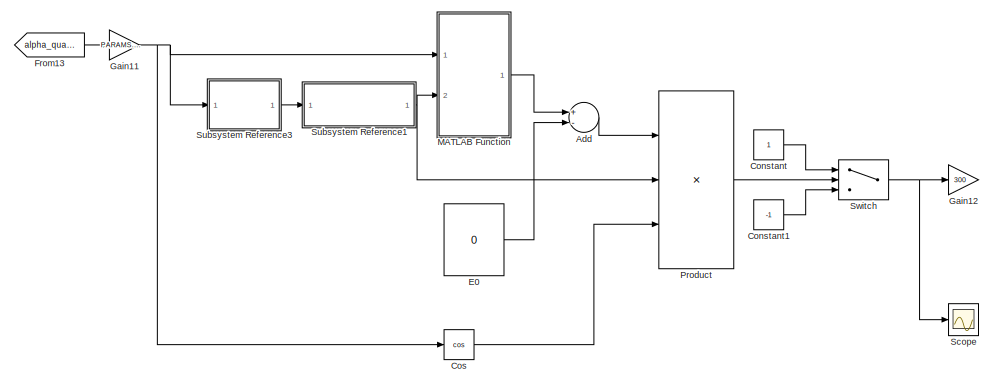
[diagram: root canvas - part 1/5, top left region]
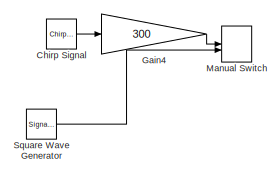
[diagram: root canvas - part 2/5, top center region]
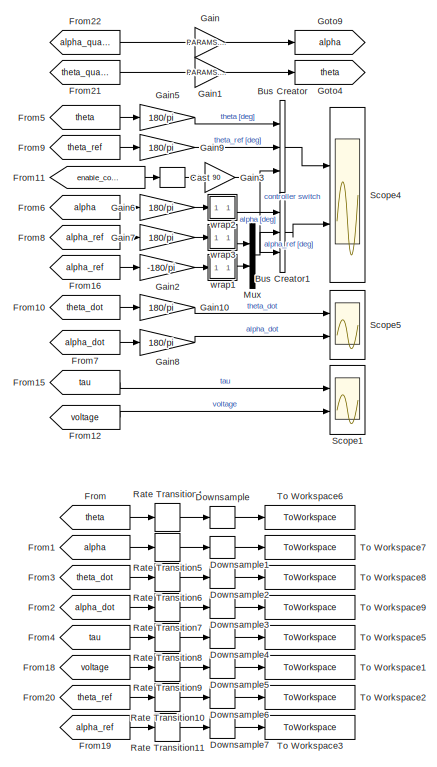
[diagram: root canvas - part 3/5, middle right region]
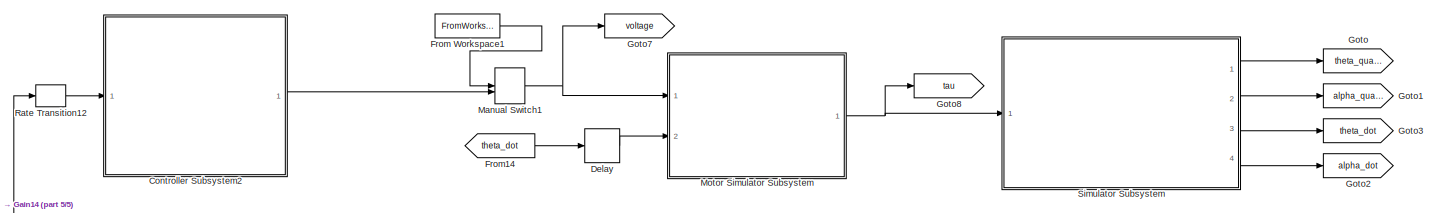
[diagram: root canvas - part 4/5, central region]
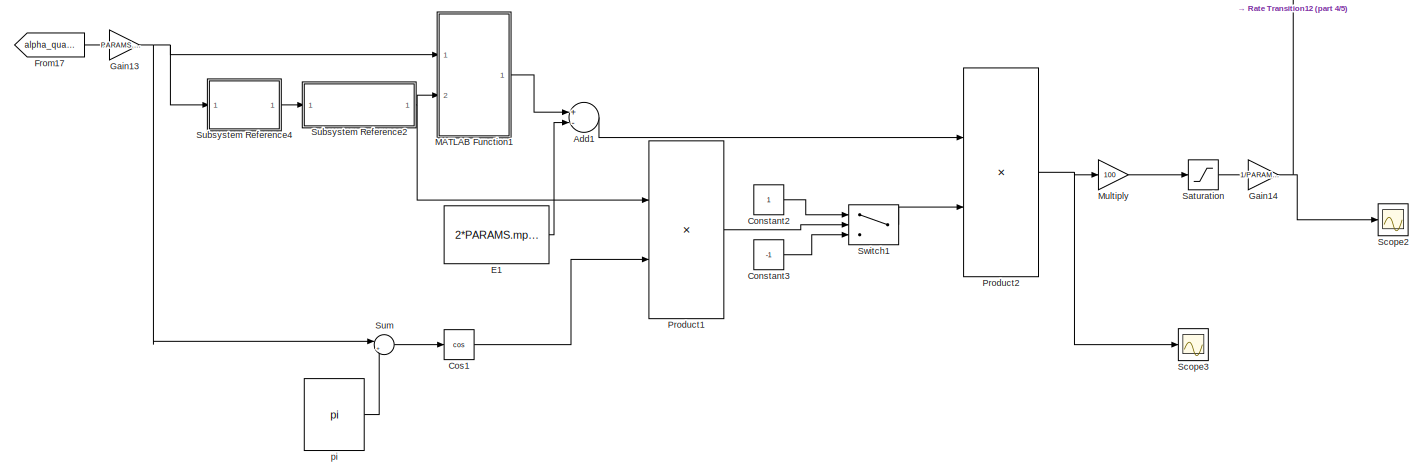
[diagram: root canvas - part 5/5, bottom center region]
MODEL slx_0ac71ec4b9f1
KIND model
CONFIG AbsTol = auto
CONFIG EnableMultiTasking = off
CONFIG FixedStep = dt
CONFIG MaxStep = auto
CONFIG MinStep = auto
CONFIG RelTol = 1e-3
CONFIG SampleTimeConstraint = Unconstrained
CONFIG Solver = ode1
CONFIG SolverName = ode1
CONFIG StartTime = 0.0
CONFIG StopTime = 25
BLOCK [Sum] Add
  InputSameDT = off
  Inputs = +-
  OutDataTypeStr = Inherit: Inherit via internal rule
  Ports = [2, 1]
  SaturateOnIntegerOverflow = off
BLOCK [Sum] Add1
  InputSameDT = off
  Inputs = +-
  OutDataTypeStr = Inherit: Inherit via internal rule
  Ports = [2, 1]
  SaturateOnIntegerOverflow = off
BLOCK [BusCreator] Bus Creator
  DisplayOption = bar
  InheritFromInputs = on
  Inputs = 3
  Ports = [3, 1]
BLOCK [BusCreator] Bus Creator1
  DisplayOption = bar
  InheritFromInputs = on
  Inputs = 3
  Ports = [3, 1]
BLOCK [DataTypeConversion] Cast
  OutDataTypeStr = double
  RndMeth = Floor
  SaturateOnIntegerOverflow = off
BLOCK [Reference] Chirp Signal  REF=simulink/Sources/Chirp Signal
  Ports = [0, 1]
  SourceBlock = simulink/Sources/Chirp Signal
  SourceProductBaseCode = SL
  SourceProductName = Simulink
  SourceType = chirp
BLOCK [Constant] Constant
BLOCK [Constant] Constant1
  Value = -1
BLOCK [Constant] Constant2
BLOCK [Constant] Constant3
  Value = -1
BLOCK [SubSystem] Controller Subsystem2
  Ports = [1, 1]
  ReferencedSubsystem = s0506_th_ddot_pid
  RequestExecContextInheritance = off
BLOCK [Trigonometry] Cos
  Operator = cos
  Ports = [1, 1]
BLOCK [Trigonometry] Cos1
  Operator = cos
  Ports = [1, 1]
BLOCK [Delay] Delay
  DelayLength = 1
  InitialCondition = PARAMS.th_dot_0
  InputPortMap = u0
  Ports = [1, 1]
BLOCK [DownSample] Downsample
  InputProcessing = Elements as channels (sample based)
  N = ceil((2e-3)/dt)
  RateOptions = Allow multirate processing
BLOCK [DownSample] Downsample1
  InputProcessing = Elements as channels (sample based)
  N = ceil((2e-3)/dt)
  RateOptions = Allow multirate processing
BLOCK [DownSample] Downsample2
  InputProcessing = Elements as channels (sample based)
  N = ceil((2e-3)/dt)
  RateOptions = Allow multirate processing
BLOCK [DownSample] Downsample3
  InputProcessing = Elements as channels (sample based)
  N = ceil((2e-3)/dt)
  RateOptions = Allow multirate processing
BLOCK [DownSample] Downsample4
  InputProcessing = Elements as channels (sample based)
  N = ceil((2e-3)/dt)
  RateOptions = Allow multirate processing
BLOCK [DownSample] Downsample5
  InputProcessing = Elements as channels (sample based)
  N = ceil((2e-3)/dt)
  RateOptions = Allow multirate processing
BLOCK [DownSample] Downsample6
  InputProcessing = Elements as channels (sample based)
  N = ceil((2e-3)/dt)
  RateOptions = Allow multirate processing
BLOCK [DownSample] Downsample7
  InputProcessing = Elements as channels (sample based)
  N = ceil((2e-3)/dt)
  RateOptions = Allow multirate processing
BLOCK [Constant] E0
  Value = 0
BLOCK [Constant] E1
  Value = 2*PARAMS.mp*PARAMS.g*PARAMS.l2
BLOCK [From] From
  GotoTag = theta
BLOCK [FromWorkspace] From Workspace1
  Commented = on
  SampleTime = 0
  VariableName = simin.voltage
  ZeroCross = on
BLOCK [From] From1
  GotoTag = alpha
BLOCK [From] From10
  GotoTag = theta_dot
  TagVisibility = global
BLOCK [From] From11
  GotoTag = enable_controller
BLOCK [From] From12
  GotoTag = voltage
BLOCK [From] From13
  GotoTag = alpha_quant
BLOCK [From] From14
  GotoTag = theta_dot
  TagVisibility = global
BLOCK [From] From15
  GotoTag = tau
BLOCK [From] From16
  GotoTag = alpha_ref
BLOCK [From] From17
  GotoTag = alpha_quant
BLOCK [From] From18
  GotoTag = voltage
BLOCK [From] From19
  GotoTag = alpha_ref
BLOCK [From] From2
  GotoTag = alpha_dot
  TagVisibility = global
BLOCK [From] From20
  GotoTag = theta_ref
BLOCK [From] From21
  GotoTag = theta_quant
BLOCK [From] From22
  GotoTag = alpha_quant
BLOCK [From] From3
  GotoTag = theta_dot
  TagVisibility = global
BLOCK [From] From4
  GotoTag = tau
BLOCK [From] From5
  GotoTag = theta
BLOCK [From] From6
  GotoTag = alpha
BLOCK [From] From7
  GotoTag = alpha_dot
  TagVisibility = global
BLOCK [From] From8
  GotoTag = alpha_ref
BLOCK [From] From9
  GotoTag = theta_ref
BLOCK [Gain] Gain
  Gain = PARAMS.angle_quantization
  OutDataTypeStr = Inherit: Inherit via internal rule
  ParamDataTypeStr = Inherit: Inherit via internal rule
  SaturateOnIntegerOverflow = off
BLOCK [Gain] Gain1
  Gain = PARAMS.angle_quantization
  OutDataTypeStr = Inherit: Inherit via internal rule
  ParamDataTypeStr = Inherit: Inherit via internal rule
  SaturateOnIntegerOverflow = off
BLOCK [Gain] Gain10
  Gain = 180/pi
  OutDataTypeStr = Inherit: Inherit via internal rule
  ParamDataTypeStr = Inherit: Inherit via internal rule
  SaturateOnIntegerOverflow = off
BLOCK [Gain] Gain11
  Gain = PARAMS.angle_quantization
  OutDataTypeStr = Inherit: Inherit via internal rule
  ParamDataTypeStr = Inherit: Inherit via internal rule
  SaturateOnIntegerOverflow = off
BLOCK [Gain] Gain12
  Gain = 300
  OutDataTypeStr = Inherit: Inherit via internal rule
  ParamDataTypeStr = Inherit: Inherit via internal rule
  SaturateOnIntegerOverflow = off
BLOCK [Gain] Gain13
  Gain = PARAMS.angle_quantization
  OutDataTypeStr = Inherit: Inherit via internal rule
  ParamDataTypeStr = Inherit: Inherit via internal rule
  SaturateOnIntegerOverflow = off
BLOCK [Gain] Gain14
  Gain = 1/PARAMS.Lr
  OutDataTypeStr = Inherit: Inherit via internal rule
  ParamDataTypeStr = Inherit: Inherit via internal rule
  SaturateOnIntegerOverflow = off
BLOCK [Gain] Gain2
  Gain = -180/pi
  OutDataTypeStr = Inherit: Inherit via internal rule
  ParamDataTypeStr = Inherit: Inherit via internal rule
  SaturateOnIntegerOverflow = off
BLOCK [Gain] Gain3
  Gain = 90
  OutDataTypeStr = Inherit: Inherit via internal rule
  ParamDataTypeStr = Inherit: Inherit via internal rule
  SaturateOnIntegerOverflow = off
BLOCK [Gain] Gain4
  Gain = 300
  OutDataTypeStr = Inherit: Inherit via internal rule
  ParamDataTypeStr = Inherit: Inherit via internal rule
  SaturateOnIntegerOverflow = off
BLOCK [Gain] Gain5
  Gain = 180/pi
  OutDataTypeStr = Inherit: Inherit via internal rule
  ParamDataTypeStr = Inherit: Inherit via internal rule
  SaturateOnIntegerOverflow = off
BLOCK [Gain] Gain6
  Gain = 180/pi
  OutDataTypeStr = Inherit: Inherit via internal rule
  ParamDataTypeStr = Inherit: Inherit via internal rule
  SaturateOnIntegerOverflow = off
BLOCK [Gain] Gain7
  Gain = 180/pi
  OutDataTypeStr = Inherit: Inherit via internal rule
  ParamDataTypeStr = Inherit: Inherit via internal rule
  SaturateOnIntegerOverflow = off
BLOCK [Gain] Gain8
  Gain = 180/pi
  OutDataTypeStr = Inherit: Inherit via internal rule
  ParamDataTypeStr = Inherit: Inherit via internal rule
  SaturateOnIntegerOverflow = off
BLOCK [Gain] Gain9
  Gain = 180/pi
  OutDataTypeStr = Inherit: Inherit via internal rule
  ParamDataTypeStr = Inherit: Inherit via internal rule
  SaturateOnIntegerOverflow = off
BLOCK [Goto] Goto
  GotoTag = theta_quant
BLOCK [Goto] Goto1
  GotoTag = alpha_quant
BLOCK [Goto] Goto2
  GotoTag = alpha_dot
  TagVisibility = global
BLOCK [Goto] Goto3
  GotoTag = theta_dot
  TagVisibility = global
BLOCK [Goto] Goto4
  GotoTag = theta
BLOCK [Goto] Goto7
  GotoTag = voltage
BLOCK [Goto] Goto8
  GotoTag = tau
BLOCK [Goto] Goto9
  GotoTag = alpha
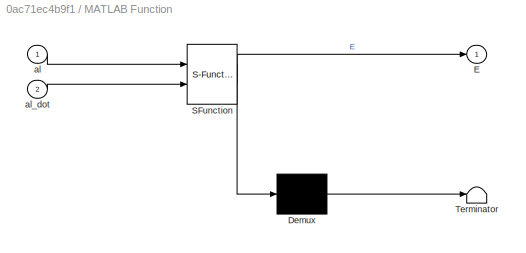
BLOCK [SubSystem] MATLAB Function
  ErrorFcn = Stateflow.Translate.translate
  PermitHierarchicalResolution = ExplicitOnly
  Ports = [2, 1]
  RequestExecContextInheritance = off
  SFBlockType = MATLAB Function
  TreatAsAtomicUnit = on
BLOCK [Demux] MATLAB Function/ Demux 
  Outputs = 1
  Ports = [1, 1]
BLOCK [S-Function] MATLAB Function/ SFunction 
  EnableBusSupport = on
  FunctionName = sf_sfun
  Parameters = PARAMS
  PortCounts = [2 2]
  Ports = [2, 2]
  SFcnIsStateOwnerBlock = off
  SFunctionDeploymentMode = off
  Tag = Stateflow S-Function 9
BLOCK [Terminator] MATLAB Function/ Terminator 
BLOCK [Outport] MATLAB Function/E
  IconDisplay = Port number
BLOCK [Inport] MATLAB Function/al
  IconDisplay = Port number
BLOCK [Inport] MATLAB Function/al_dot
  IconDisplay = Port number
  Port = 2
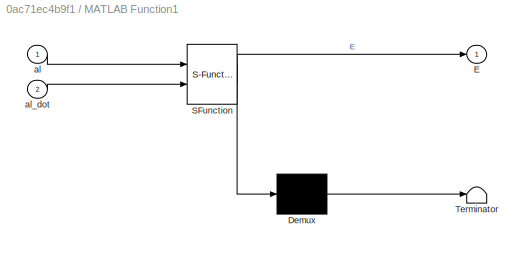
BLOCK [SubSystem] MATLAB Function1
  ErrorFcn = Stateflow.Translate.translate
  PermitHierarchicalResolution = ExplicitOnly
  Ports = [2, 1]
  RequestExecContextInheritance = off
  SFBlockType = MATLAB Function
  TreatAsAtomicUnit = on
BLOCK [Demux] MATLAB Function1/ Demux 
  Outputs = 1
  Ports = [1, 1]
BLOCK [S-Function] MATLAB Function1/ SFunction 
  EnableBusSupport = on
  FunctionName = sf_sfun
  Parameters = PARAMS
  PortCounts = [2 2]
  Ports = [2, 2]
  SFcnIsStateOwnerBlock = off
  SFunctionDeploymentMode = off
  Tag = Stateflow S-Function 13
BLOCK [Terminator] MATLAB Function1/ Terminator 
BLOCK [Outport] MATLAB Function1/E
  IconDisplay = Port number
BLOCK [Inport] MATLAB Function1/al
  IconDisplay = Port number
BLOCK [Inport] MATLAB Function1/al_dot
  IconDisplay = Port number
  Port = 2
BLOCK [ManualSwitch] Manual Switch
  CurrentSetting = 0
BLOCK [ManualSwitch] Manual Switch1
  CurrentSetting = 0
BLOCK [SubSystem] Motor Simulator Subsystem
  Ports = [2, 1]
  ReferencedSubsystem = s0303_motor_simulator
  RequestExecContextInheritance = off
  i_0 = 0
  omega_0 = PARAMS.th_dot_0
BLOCK [Gain] Multiply
  Gain = 100
  OutDataTypeStr = Inherit: Inherit via internal rule
  ParamDataTypeStr = Inherit: Inherit via internal rule
  SaturateOnIntegerOverflow = off
BLOCK [Mux] Mux
  DisplayOption = bar
  Inputs = 2
  Ports = [2, 1]
BLOCK [Product] Product
  InputSameDT = off
  Inputs = 3
  OutDataTypeStr = Inherit: Inherit via internal rule
  Ports = [3, 1]
  RndMeth = Floor
  SaturateOnIntegerOverflow = off
BLOCK [Product] Product1
  InputSameDT = off
  OutDataTypeStr = Inherit: Inherit via internal rule
  Ports = [2, 1]
  RndMeth = Floor
  SaturateOnIntegerOverflow = off
BLOCK [Product] Product2
  InputSameDT = off
  OutDataTypeStr = Inherit: Inherit via internal rule
  Ports = [2, 1]
  RndMeth = Floor
  SaturateOnIntegerOverflow = off
BLOCK [RateTransition] Rate Transition10
  OutPortSampleTime = dt
BLOCK [RateTransition] Rate Transition11
  OutPortSampleTime = dt
BLOCK [RateTransition] Rate Transition12
  OutPortSampleTime = dt_control
BLOCK [RateTransition] Rate Transition4
  OutPortSampleTime = dt
BLOCK [RateTransition] Rate Transition5
  OutPortSampleTime = dt
BLOCK [RateTransition] Rate Transition6
  OutPortSampleTime = dt
BLOCK [RateTransition] Rate Transition7
  OutPortSampleTime = dt
BLOCK [RateTransition] Rate Transition8
  OutPortSampleTime = dt
BLOCK [RateTransition] Rate Transition9
  OutPortSampleTime = dt
BLOCK [Saturate] Saturation
  InputPortMap = u0
  LowerLimit = -200
  Ports = [1, 1]
  UpperLimit = 200
BLOCK [Scope] Scope
  Floating = off
  NumInputPorts = 1
  Ports = [1]
  ScopeSpecificationString = Simulink.scopes.TimeScopeBlockCfg('CurrentConfiguration', extmgr.ConfigurationSet(extmgr.Configuration('Core','General UI',true),extmgr.Configuration('Core','Source UI',true),extmgr.Configuration('Sources','WiredSimulink',true,'DataLoggingVariableName','ScopeData2'),extmgr.Configuration('Visuals','Time Domain',true,'SerializedDisplays',{struct('MinYLimReal','-1.25','MaxYLimReal','1.25','YLabelReal...<+1392ch>
BLOCK [Scope] Scope1
  Floating = off
  NumInputPorts = 2
  Ports = [2]
  ScopeSpecificationString = Simulink.scopes.TimeScopeBlockCfg('CurrentConfiguration', extmgr.ConfigurationSet(extmgr.Configuration('Core','General UI',true),extmgr.Configuration('Core','Source UI',true),extmgr.Configuration('Sources','WiredSimulink',true),extmgr.Configuration('Visuals','Time Domain',true,'SerializedDisplays',{struct('MinYLimReal','-0.0275','MaxYLimReal','0.0275','YLabelReal','','MinYLimMag','0.00000','MaxYLi...<+1988ch>
BLOCK [Scope] Scope2
  Floating = off
  NumInputPorts = 1
  Ports = [1]
  ScopeSpecificationString = Simulink.scopes.TimeScopeBlockCfg('CurrentConfiguration', extmgr.ConfigurationSet(extmgr.Configuration('Core','General UI',true),extmgr.Configuration('Core','Source UI',true),extmgr.Configuration('Sources','WiredSimulink',true,'DataLoggingVariableName','ScopeData3'),extmgr.Configuration('Visuals','Time Domain',true,'SerializedDisplays',{struct('MinYLimReal','-218.0723','MaxYLimReal','246.45248','Y...<+1422ch>
BLOCK [Scope] Scope3
  Floating = off
  NumInputPorts = 1
  Ports = [1]
  ScopeSpecificationString = Simulink.scopes.TimeScopeBlockCfg('CurrentConfiguration', extmgr.ConfigurationSet(extmgr.Configuration('Core','General UI',true),extmgr.Configuration('Core','Source UI',true),extmgr.Configuration('Sources','WiredSimulink',true,'DataLoggingVariableName','ScopeData4'),extmgr.Configuration('Visuals','Time Domain',true,'SerializedDisplays',{struct('MinYLimReal','-0.03046','MaxYLimReal','0.03046','YLab...<+1393ch>
BLOCK [Scope] Scope4
  Floating = off
  NumInputPorts = 2
  Ports = [2]
  ScopeSpecificationString = Simulink.scopes.TimeScopeBlockCfg('CurrentConfiguration', extmgr.ConfigurationSet(extmgr.Configuration('Core','General UI',true),extmgr.Configuration('Core','Source UI',true),extmgr.Configuration('Sources','WiredSimulink',true,'DataLoggingVariableName','ScopeData3'),extmgr.Configuration('Visuals','Time Domain',true,'SerializedDisplays',{struct('MinYLimReal','-67.47889','MaxYLimReal','40.91828','YL...<+2292ch>
BLOCK [Scope] Scope5
  Floating = off
  NumInputPorts = 2
  Ports = [2]
  ScopeSpecificationString = Simulink.scopes.TimeScopeBlockCfg('CurrentConfiguration', extmgr.ConfigurationSet(extmgr.Configuration('Core','General UI',true),extmgr.Configuration('Core','Source UI',true),extmgr.Configuration('Sources','WiredSimulink',true,'DataLoggingVariableName','ScopeData4'),extmgr.Configuration('Visuals','Time Domain',true,'SerializedDisplays',{struct('MinYLimReal','-257.82434','MaxYLimReal','77.25362','Y...<+2051ch>
BLOCK [SubSystem] Simulator Subsystem
  Ports = [1, 4]
  ReferencedSubsystem = s0405_mechanical_simulator
  RequestExecContextInheritance = off
  al_0 = PARAMS.al_0
  al_dot_0 = PARAMS.al_dot_0
  th_0 = PARAMS.th_0
  th_dot_0 = PARAMS.th_dot_0
BLOCK [SignalGenerator] Square Wave Generator
  Amplitude = 120
  Ports = [0, 1]
  WaveForm = square
BLOCK [SubSystem] Subsystem Reference1
  BlockKeywords = __PRM__SERIALIZED__DATA__:SubsystemReferenceBlock
  Ports = [1, 1]
  ReferencedSubsystem = Filtered_Derivative
  RequestExecContextInheritance = off
  den = den_der_filter
  num = num_der_filter
BLOCK [SubSystem] Subsystem Reference2
  BlockKeywords = __PRM__SERIALIZED__DATA__:SubsystemReferenceBlock
  Ports = [1, 1]
  ReferencedSubsystem = Filtered_Derivative
  RequestExecContextInheritance = off
  den = den_der_filter
  num = num_der_filter
BLOCK [SubSystem] Subsystem Reference3
  BlockKeywords = __PRM__SERIALIZED__DATA__:SubsystemReferenceBlock
  Ports = [1, 1]
  ReferencedSubsystem = Polynomial_Filter
  RequestExecContextInheritance = off
BLOCK [SubSystem] Subsystem Reference4
  BlockKeywords = __PRM__SERIALIZED__DATA__:SubsystemReferenceBlock
  Ports = [1, 1]
  ReferencedSubsystem = Polynomial_Filter
  RequestExecContextInheritance = off
BLOCK [Sum] Sum
  IconShape = round
  InputSameDT = off
  Inputs = |++
  OutDataTypeStr = Inherit: Inherit via internal rule
  Ports = [2, 1]
  SaturateOnIntegerOverflow = off
BLOCK [Switch] Switch
  InputSameDT = off
  SaturateOnIntegerOverflow = off
BLOCK [Switch] Switch1
  InputSameDT = off
  SaturateOnIntegerOverflow = off
BLOCK [ToWorkspace] To Workspace1
  FixptAsFi = on
  MaxDataPoints = inf
  Ports = [1]
  SampleTime = -1
  SaveFormat = Timeseries
  VariableName = voltage
BLOCK [ToWorkspace] To Workspace2
  FixptAsFi = on
  MaxDataPoints = inf
  Ports = [1]
  SampleTime = -1
  SaveFormat = Timeseries
  VariableName = theta_ref
BLOCK [ToWorkspace] To Workspace3
  FixptAsFi = on
  MaxDataPoints = inf
  Ports = [1]
  SampleTime = -1
  SaveFormat = Timeseries
  VariableName = alpha_ref
BLOCK [ToWorkspace] To Workspace5
  FixptAsFi = on
  MaxDataPoints = inf
  Ports = [1]
  SampleTime = -1
  SaveFormat = Timeseries
  VariableName = tau
BLOCK [ToWorkspace] To Workspace6
  FixptAsFi = on
  MaxDataPoints = inf
  Ports = [1]
  SampleTime = -1
  SaveFormat = Timeseries
  VariableName = theta
BLOCK [ToWorkspace] To Workspace7
  FixptAsFi = on
  MaxDataPoints = inf
  Ports = [1]
  SampleTime = -1
  SaveFormat = Timeseries
  VariableName = alpha
BLOCK [ToWorkspace] To Workspace8
  FixptAsFi = on
  MaxDataPoints = inf
  Ports = [1]
  SampleTime = -1
  SaveFormat = Timeseries
  VariableName = theta_dot
BLOCK [ToWorkspace] To Workspace9
  FixptAsFi = on
  MaxDataPoints = inf
  Ports = [1]
  SampleTime = -1
  SaveFormat = Timeseries
  VariableName = alpha_dot
BLOCK [Constant] pi
  Commented = on
  Value = pi
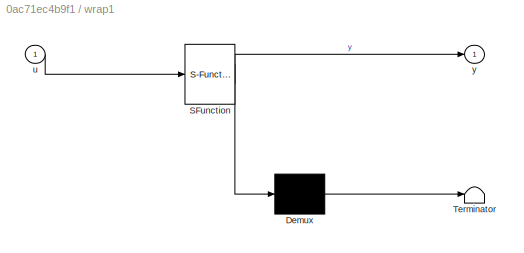
BLOCK [SubSystem] wrap1
  ErrorFcn = Stateflow.Translate.translate
  PermitHierarchicalResolution = ExplicitOnly
  Ports = [1, 1]
  RequestExecContextInheritance = off
  SFBlockType = MATLAB Function
  TreatAsAtomicUnit = on
BLOCK [Demux] wrap1/ Demux 
  DisplayOption = bar
  Outputs = 1
  Ports = [1, 1]
BLOCK [S-Function] wrap1/ SFunction 
  EnableBusSupport = on
  FunctionName = sf_sfun
  PortCounts = [1 2]
  Ports = [1, 2]
  SFcnIsStateOwnerBlock = off
  SFunctionDeploymentMode = off
  Tag = Stateflow S-Function 7
BLOCK [Terminator] wrap1/ Terminator 
BLOCK [Inport] wrap1/u
  IconDisplay = Port number
BLOCK [Outport] wrap1/y
  IconDisplay = Port number
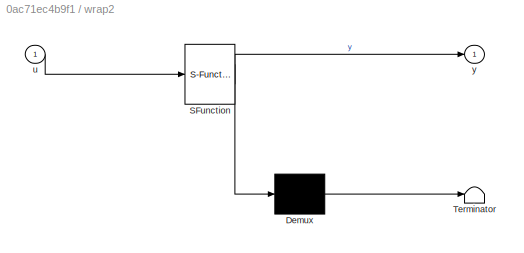
BLOCK [SubSystem] wrap2
  ErrorFcn = Stateflow.Translate.translate
  PermitHierarchicalResolution = ExplicitOnly
  Ports = [1, 1]
  RequestExecContextInheritance = off
  SFBlockType = MATLAB Function
  TreatAsAtomicUnit = on
BLOCK [Demux] wrap2/ Demux 
  DisplayOption = bar
  Outputs = 1
  Ports = [1, 1]
BLOCK [S-Function] wrap2/ SFunction 
  EnableBusSupport = on
  FunctionName = sf_sfun
  PortCounts = [1 2]
  Ports = [1, 2]
  SFcnIsStateOwnerBlock = off
  SFunctionDeploymentMode = off
  Tag = Stateflow S-Function 4
BLOCK [Terminator] wrap2/ Terminator 
BLOCK [Inport] wrap2/u
  IconDisplay = Port number
BLOCK [Outport] wrap2/y
  IconDisplay = Port number
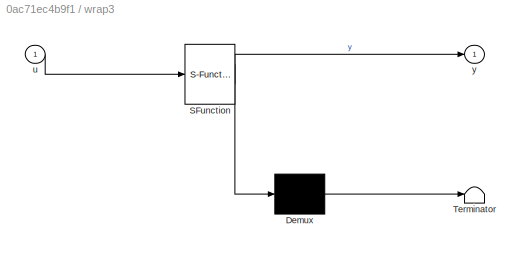
BLOCK [SubSystem] wrap3
  ErrorFcn = Stateflow.Translate.translate
  PermitHierarchicalResolution = ExplicitOnly
  Ports = [1, 1]
  RequestExecContextInheritance = off
  SFBlockType = MATLAB Function
  TreatAsAtomicUnit = on
BLOCK [Demux] wrap3/ Demux 
  DisplayOption = bar
  Outputs = 1
  Ports = [1, 1]
BLOCK [S-Function] wrap3/ SFunction 
  EnableBusSupport = on
  FunctionName = sf_sfun
  PortCounts = [1 2]
  Ports = [1, 2]
  SFcnIsStateOwnerBlock = off
  SFunctionDeploymentMode = off
  Tag = Stateflow S-Function 5
BLOCK [Terminator] wrap3/ Terminator 
BLOCK [Inport] wrap3/u
  IconDisplay = Port number
BLOCK [Outport] wrap3/y
  IconDisplay = Port number
LINE Add1:1 -> Product2:1
LINE Add:1 -> Product:1
LINE Bus Creator1:1 -> Scope4:2
LINE Bus Creator:1 -> Scope4:1
LINE Cast:1 -> Gain3:1
LINE Chirp Signal:1 -> Gain4:1
LINE Constant1:1 -> Switch:3
LINE Constant2:1 -> Switch1:1
LINE Constant3:1 -> Switch1:3
LINE Constant:1 -> Switch:1
LINE Controller Subsystem2:1 -> Manual Switch1:2
LINE Cos1:1 -> Product1:2
LINE Cos:1 -> Product:3
LINE Delay:1 -> Motor Simulator Subsystem:2
LINE Downsample1:1 -> To Workspace7:1
LINE Downsample2:1 -> To Workspace8:1
LINE Downsample3:1 -> To Workspace9:1
LINE Downsample4:1 -> To Workspace5:1
LINE Downsample5:1 -> To Workspace1:1
LINE Downsample6:1 -> To Workspace2:1
LINE Downsample7:1 -> To Workspace3:1
LINE Downsample:1 -> To Workspace6:1
LINE E0:1 -> Add:2
LINE E1:1 -> Add1:2
LINE From Workspace1:1 -> Manual Switch1:1
LINE From10:1 -> Gain10:1
LINE From11:1 -> Cast:1
LINE From12:1 -> Scope1:2
LINE From13:1 -> Gain11:1
LINE From14:1 -> Delay:1
LINE From15:1 -> Scope1:1
LINE From16:1 -> Gain2:1
LINE From17:1 -> Gain13:1
LINE From18:1 -> Rate Transition9:1
LINE From19:1 -> Rate Transition11:1
LINE From1:1 -> Rate Transition5:1
LINE From20:1 -> Rate Transition10:1
LINE From21:1 -> Gain1:1
LINE From22:1 -> Gain:1
LINE From2:1 -> Rate Transition7:1
LINE From3:1 -> Rate Transition6:1
LINE From4:1 -> Rate Transition8:1
LINE From5:1 -> Gain5:1
LINE From6:1 -> Gain6:1
LINE From7:1 -> Gain8:1
LINE From8:1 -> Gain7:1
LINE From9:1 -> Gain9:1
LINE From:1 -> Rate Transition4:1
LINE Gain10:1 -> Scope5:1
NET Gain11:1 -> Cos:1, MATLAB Function:1, Subsystem Reference3:1
NET Gain13:1 -> MATLAB Function1:1, Subsystem Reference4:1, Sum:1
NET Gain14:1 -> Rate Transition12:1, Scope2:1
LINE Gain1:1 -> Goto4:1
LINE Gain2:1 -> wrap1:1
NET Gain3:1 -> Bus Creator1:3, Bus Creator:3
LINE Gain4:1 -> Manual Switch:1
LINE Gain5:1 -> Bus Creator:1
LINE Gain6:1 -> wrap2:1
LINE Gain7:1 -> wrap3:1
LINE Gain8:1 -> Scope5:2
LINE Gain9:1 -> Bus Creator:2
LINE Gain:1 -> Goto9:1
LINE MATLAB Function1:1 -> Add1:1
LINE MATLAB Function:1 -> Add:1
NET Manual Switch1:1 -> Goto7:1, Motor Simulator Subsystem:1
NET Motor Simulator Subsystem:1 -> Goto8:1, Simulator Subsystem:1
LINE Multiply:1 -> Saturation:1
LINE Mux:1 -> Bus Creator1:2
LINE Product1:1 -> Switch1:2
NET Product2:1 -> Multiply:1, Scope3:1
LINE Product:1 -> Switch:2
LINE Rate Transition10:1 -> Downsample6:1
LINE Rate Transition11:1 -> Downsample7:1
LINE Rate Transition12:1 -> Controller Subsystem2:1
LINE Rate Transition4:1 -> Downsample:1
LINE Rate Transition5:1 -> Downsample1:1
LINE Rate Transition6:1 -> Downsample2:1
LINE Rate Transition7:1 -> Downsample3:1
LINE Rate Transition8:1 -> Downsample4:1
LINE Rate Transition9:1 -> Downsample5:1
LINE Saturation:1 -> Gain14:1
LINE Simulator Subsystem:1 -> Goto:1
LINE Simulator Subsystem:2 -> Goto1:1
LINE Simulator Subsystem:3 -> Goto3:1
LINE Simulator Subsystem:4 -> Goto2:1
LINE Square Wave Generator:1 -> Manual Switch:2
NET Subsystem Reference1:1 -> MATLAB Function:2, Product:2
NET Subsystem Reference2:1 -> MATLAB Function1:2, Product1:1
LINE Subsystem Reference3:1 -> Subsystem Reference1:1
LINE Subsystem Reference4:1 -> Subsystem Reference2:1
LINE Sum:1 -> Cos1:1
LINE Switch1:1 -> Product2:2
NET Switch:1 -> Gain12:1, Scope:1
LINE pi:1 -> Sum:2
LINE wrap1:1 -> Mux:2
LINE wrap2:1 -> Bus Creator1:1
LINE wrap3:1 -> Mux:1
note: NET lines group one-source signal fan-out (src -> all destinations, sorted); 1:1 wires keep LINE
CHART wrap2 states=1 transitions=1
  STATE_LABEL 'eML_blk_kernel()'
  STATE_LABEL 'SCRIPT:\nfunction y = wrap(u)\nstop_condition = false;\ny = u;\nwhile ~stop_condition\n    if y > 270\n        y = y - 360;\n    elseif y < -270\n        y = y + 360;\n    else\n        stop_condition = true;\n    end\nend\n    '  <repeated x3 — deduplicated; at blocks: wrap2, wrap3, wrap1>
CHART wrap3 states=1 transitions=1
  STATE_LABEL 'eML_blk_kernel()'
CHART wrap1 states=1 transitions=1
  STATE_LABEL 'eML_blk_kernel()'
CHART MATLAB Function states=1 transitions=1
  STATE_LABEL 'eML_blk_kernel()'
  STATE_LABEL 'SCRIPT:\nfunction E = energy(al, al_dot, PARAMS)\n    \n    J=1/12*PARAMS.Lp^2*PARAMS.mp + PARAMS.l2^2*PARAMS.mp;\n    \n    \n    \nE = 1/2*J*al_dot^2+PARAMS.mp*PARAMS.g*PARAMS.l2*(cos(al+pi)-1);\n'
CHART MATLAB Function1 states=1 transitions=1
  STATE_LABEL 'eML_blk_kernel()'
  STATE_LABEL 'SCRIPT:\nfunction E = energy(al, al_dot, PARAMS)\n    \n    J=1/12*PARAMS.Lp^2*PARAMS.mp + PARAMS.l2^2*PARAMS.mp;\n    \n    \n    \nE = 1/2*J*al_dot^2+PARAMS.mp*PARAMS.g*PARAMS.l2*(1-cos(al));\n'
